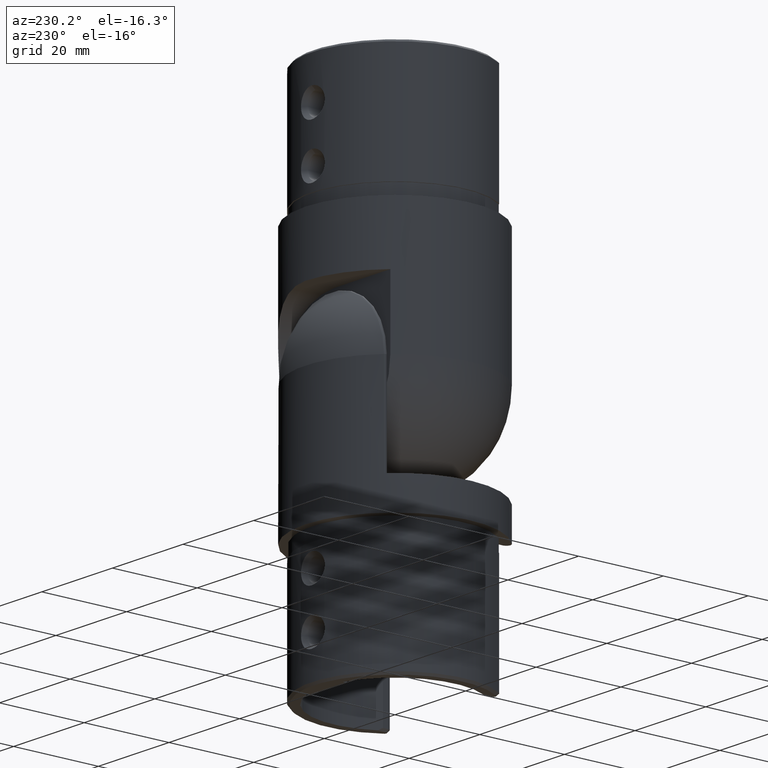
[diagram: clean part render]
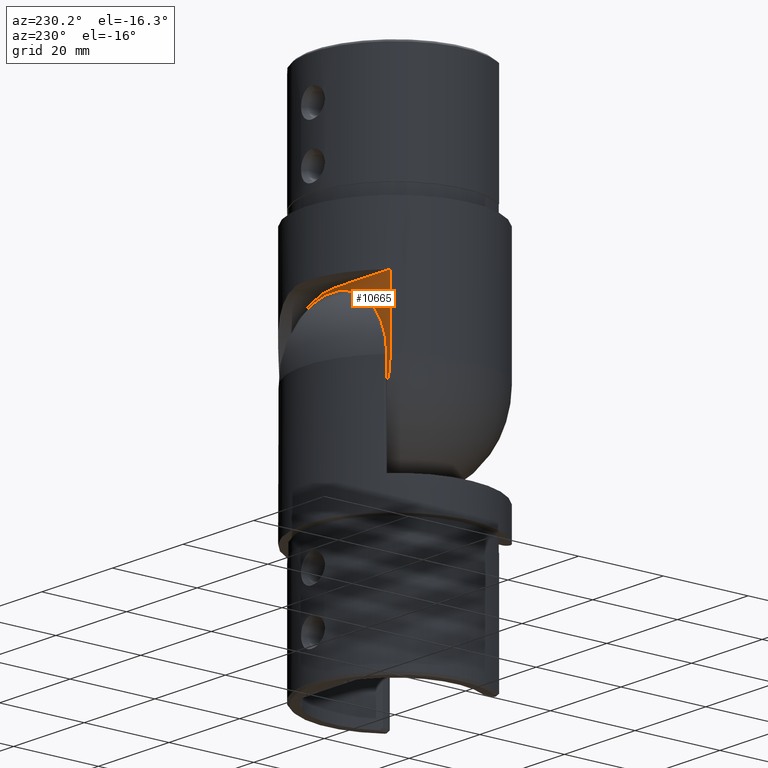
[diagram: same view with one face highlighted and labeled with its STEP entity id]
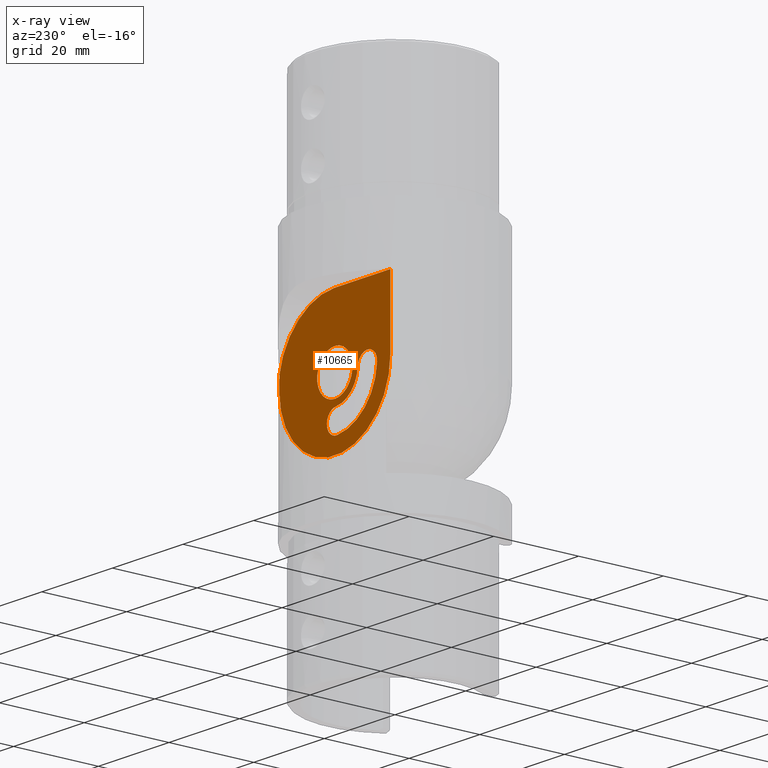
[diagram: x-ray of the same camera — body ghosted, the highlighted face saturated]
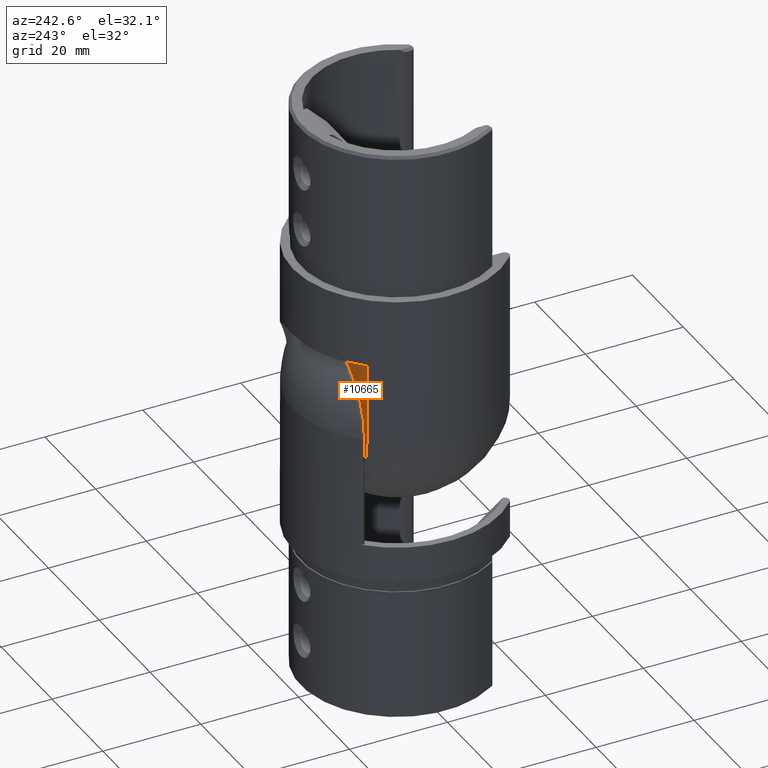
[diagram: same view with one face highlighted and labeled with its STEP entity id]
A machine part, auxiliary view. The second image highlights one B-rep face of the part: STEP entity #10665.
The next image is the same camera in x-ray: the body ghosted, the highlighted face saturated — about 0% of this face is hidden behind the body in this view.
A second angle (auxiliary view) of the same face is appended — the face is thin or edge-on in the first view.
In plain terms, the highlighted planar face has unit normal (0, 1, 0).
Its self-contained STEP definition (entity closure, byte-faithful):
#600 = DIRECTION ( 'NONE',  ( 1.000000000000000000, 0.0000000000000000000, 0.0000000000000000000 ) ) ;
#704 = VECTOR ( 'NONE', #12915, 1000.000000000000000 ) ;
#729 = EDGE_CURVE ( 'NONE', #8797, #14318, #22289, .T. ) ;
#1122 = DIRECTION ( 'NONE',  ( 0.0000000000000000000, 0.0000000000000000000, 1.000000000000000000 ) ) ;
#1349 = CIRCLE ( 'NONE', #1797, 6.500000000000002700 ) ;
#1753 = AXIS2_PLACEMENT_3D ( 'NONE', #14010, #15856, #23594 ) ;
#1797 = AXIS2_PLACEMENT_3D ( 'NONE', #23430, #2847, #1122 ) ;
#1901 = ORIENTED_EDGE ( 'NONE', *, *, #19060, .T. ) ;
#1964 = EDGE_CURVE ( 'NONE', #12697, #11263, #5080, .T. ) ;
#2166 = CARTESIAN_POINT ( 'NONE',  ( -11.98268790373803900, 14.20000000000000100, -30.64435285489399900 ) ) ;
#2571 = DIRECTION ( 'NONE',  ( -0.0000000000000000000, -1.000000000000000000, -0.0000000000000000000 ) ) ;
#2613 = EDGE_CURVE ( 'NONE', #11733, #15005, #9717, .T. ) ;
#2845 = DIRECTION ( 'NONE',  ( -0.0000000000000000000, -1.000000000000000000, -0.0000000000000000000 ) ) ;
#2847 = DIRECTION ( 'NONE',  ( 0.0000000000000000000, 1.000000000000000000, 0.0000000000000000000 ) ) ;
#2946 = CIRCLE ( 'NONE', #13919, 16.00000000000000000 ) ;
#3463 = LINE ( 'NONE', #19044, #11047 ) ;
#3526 = CARTESIAN_POINT ( 'NONE',  ( -15.74166446091390600, 14.20000000000000100, -30.00000000000000000 ) ) ;
#4470 = ORIENTED_EDGE ( 'NONE', *, *, #15861, .T. ) ;
#4886 = DIRECTION ( 'NONE',  ( -0.0000000000000000000, -1.000000000000000000, -0.0000000000000000000 ) ) ;
#5074 = CARTESIAN_POINT ( 'NONE',  ( 0.0000000000000000000, 14.20000000000000100, -30.00000000000000000 ) ) ;
#5080 = LINE ( 'NONE', #22197, #704 ) ;
#5240 = AXIS2_PLACEMENT_3D ( 'NONE', #5074, #6939, #8901 ) ;
#5564 = CARTESIAN_POINT ( 'NONE',  ( 0.0000000000000000000, 14.20000000000000100, -13.99999999999999800 ) ) ;
#6107 = AXIS2_PLACEMENT_3D ( 'NONE', #17869, #4886, #16170 ) ;
#6228 = EDGE_CURVE ( 'NONE', #14318, #19383, #1349, .T. ) ;
#6818 = CIRCLE ( 'NONE', #15488, 2.749999999999999100 ) ;
#6939 = DIRECTION ( 'NONE',  ( 0.0000000000000000000, 1.000000000000000000, 0.0000000000000000000 ) ) ;
#7280 = CIRCLE ( 'NONE', #1753, 12.00000000000000400 ) ;
#7671 = FACE_BOUND ( 'NONE', #22467, .T. ) ;
#7815 = CARTESIAN_POINT ( 'NONE',  ( 15.74166446091390300, 14.20000000000000100, -30.00000000000000000 ) ) ;
#8129 = CARTESIAN_POINT ( 'NONE',  ( -9.236655259131403300, 14.20000000000000100, -30.49668865898079400 ) ) ;
#8145 = ORIENTED_EDGE ( 'NONE', *, *, #21438, .T. ) ;
#8304 = DIRECTION ( 'NONE',  ( 1.774149009521732800E-015, 0.0000000000000000000, 1.000000000000000000 ) ) ;
#8796 = EDGE_CURVE ( 'NONE', #19383, #15045, #6818, .T. ) ;
#8797 = VERTEX_POINT ( 'NONE', #21031 ) ;
#8901 = DIRECTION ( 'NONE',  ( 0.0000000000000000000, -0.0000000000000000000, 1.000000000000000000 ) ) ;
#8905 = DIRECTION ( 'NONE',  ( 0.0000000000000000000, 0.0000000000000000000, 1.000000000000000000 ) ) ;
#8985 = CARTESIAN_POINT ( 'NONE',  ( 0.0000000000000000000, 14.20000000000000100, -30.00000000000000000 ) ) ;
#9201 = DIRECTION ( 'NONE',  ( 0.0000000000000000000, 0.0000000000000000000, 1.000000000000000000 ) ) ;
#9428 = VECTOR ( 'NONE', #20110, 1000.000000000000000 ) ;
#9480 = ORIENTED_EDGE ( 'NONE', *, *, #16928, .T. ) ;
#9568 = CARTESIAN_POINT ( 'NONE',  ( -15.74166446091391000, 14.20000000000000100, -30.00000000000000000 ) ) ;
#9585 = CIRCLE ( 'NONE', #11713, 15.74166446091390600 ) ;
#9717 = LINE ( 'NONE', #3526, #9428 ) ;
#10665 = ADVANCED_FACE ( 'NONE', ( #7671, #21932, #16950 ), #22075, .T. ) ;
#10920 = DIRECTION ( 'NONE',  ( 0.0000000000000000000, 1.000000000000000000, 0.0000000000000000000 ) ) ;
#11047 = VECTOR ( 'NONE', #600, 1000.000000000000000 ) ;
#11263 = VERTEX_POINT ( 'NONE', #19847 ) ;
#11713 = AXIS2_PLACEMENT_3D ( 'NONE', #22055, #10920, #9201 ) ;
#11733 = VERTEX_POINT ( 'NONE', #15998 ) ;
#12130 = VERTEX_POINT ( 'NONE', #18836 ) ;
#12213 = VERTEX_POINT ( 'NONE', #5564 ) ;
#12697 = VERTEX_POINT ( 'NONE', #7815 ) ;
#12915 = DIRECTION ( 'NONE',  ( 0.0000000000000000000, 0.0000000000000000000, 1.000000000000000000 ) ) ;
#13163 = EDGE_LOOP ( 'NONE', ( #8145, #1901, #20196, #9480, #20286 ) ) ;
#13919 = AXIS2_PLACEMENT_3D ( 'NONE', #8985, #20034, #8905 ) ;
#14010 = CARTESIAN_POINT ( 'NONE',  ( 1.734723475976807100E-015, 14.20000000000000100, -30.00000000000000000 ) ) ;
#14318 = VERTEX_POINT ( 'NONE', #23600 ) ;
#15005 = VERTEX_POINT ( 'NONE', #9568 ) ;
#15045 = VERTEX_POINT ( 'NONE', #2166 ) ;
#15488 = AXIS2_PLACEMENT_3D ( 'NONE', #8129, #2571, #21121 ) ;
#15856 = DIRECTION ( 'NONE',  ( -0.0000000000000000000, -1.000000000000000000, -0.0000000000000000000 ) ) ;
#15861 = EDGE_CURVE ( 'NONE', #15045, #8797, #7280, .T. ) ;
#15998 = CARTESIAN_POINT ( 'NONE',  ( -15.74166446091390600, 14.20000000000000100, -13.99999999999999800 ) ) ;
#16170 = DIRECTION ( 'NONE',  ( 0.0000000000000000000, 0.0000000000000000000, 1.000000000000000000 ) ) ;
#16563 = ORIENTED_EDGE ( 'NONE', *, *, #6228, .T. ) ;
#16928 = EDGE_CURVE ( 'NONE', #12697, #15005, #9585, .T. ) ;
#16950 = FACE_OUTER_BOUND ( 'NONE', #13163, .T. ) ;
#17604 = ORIENTED_EDGE ( 'NONE', *, *, #23967, .T. ) ;
#17869 = CARTESIAN_POINT ( 'NONE',  ( -5.806758582743424700E-015, 14.20000000000000100, -30.00000000000000000 ) ) ;
#18836 = CARTESIAN_POINT ( 'NONE',  ( -5.806758582743424700E-015, 14.20000000000000100, -24.99999999999998200 ) ) ;
#19044 = CARTESIAN_POINT ( 'NONE',  ( -16.00000000000000000, 14.20000000000000100, -13.99999999999999800 ) ) ;
#19060 = EDGE_CURVE ( 'NONE', #12213, #11263, #2946, .T. ) ;
#19383 = VERTEX_POINT ( 'NONE', #23115 ) ;
#19847 = CARTESIAN_POINT ( 'NONE',  ( 15.74166446091390600, 14.20000000000000100, -27.13643578734470900 ) ) ;
#20034 = DIRECTION ( 'NONE',  ( 0.0000000000000000000, 1.000000000000000000, 0.0000000000000000000 ) ) ;
#20110 = DIRECTION ( 'NONE',  ( -0.0000000000000000000, -0.0000000000000000000, -1.000000000000000000 ) ) ;
#20196 = ORIENTED_EDGE ( 'NONE', *, *, #1964, .F. ) ;
#20286 = ORIENTED_EDGE ( 'NONE', *, *, #2613, .F. ) ;
#20289 = ORIENTED_EDGE ( 'NONE', *, *, #729, .T. ) ;
#21031 = CARTESIAN_POINT ( 'NONE',  ( -0.6443528548940016300, 14.20000000000000100, -41.98268790373803900 ) ) ;
#21121 = DIRECTION ( 'NONE',  ( 0.0000000000000000000, 0.0000000000000000000, 1.000000000000000000 ) ) ;
#21150 = CARTESIAN_POINT ( 'NONE',  ( -0.4966886589807958400, 14.20000000000000100, -39.23665525913140300 ) ) ;
#21183 = AXIS2_PLACEMENT_3D ( 'NONE', #21150, #2845, #8304 ) ;
#21438 = EDGE_CURVE ( 'NONE', #11733, #12213, #3463, .T. ) ;
#21932 = FACE_BOUND ( 'NONE', #23659, .T. ) ;
#22055 = CARTESIAN_POINT ( 'NONE',  ( -5.806758582743424700E-015, 14.20000000000000100, -30.00000000000000000 ) ) ;
#22075 = PLANE ( 'NONE',  #5240 ) ;
#22197 = CARTESIAN_POINT ( 'NONE',  ( 15.74166446091390600, 14.20000000000000100, -30.00000000000000000 ) ) ;
#22289 = CIRCLE ( 'NONE', #21183, 2.750000000000002700 ) ;
#22467 = EDGE_LOOP ( 'NONE', ( #17604 ) ) ;
#22625 = CIRCLE ( 'NONE', #6107, 5.000000000000018700 ) ;
#23115 = CARTESIAN_POINT ( 'NONE',  ( -6.490622614524770700, 14.20000000000000100, -30.34902446306758600 ) ) ;
#23430 = CARTESIAN_POINT ( 'NONE',  ( 1.734723475976807100E-015, 14.20000000000000100, -30.00000000000000000 ) ) ;
#23524 = ORIENTED_EDGE ( 'NONE', *, *, #8796, .T. ) ;
#23594 = DIRECTION ( 'NONE',  ( 0.0000000000000000000, 0.0000000000000000000, 1.000000000000000000 ) ) ;
#23600 = CARTESIAN_POINT ( 'NONE',  ( -0.3490244630675836700, 14.20000000000000100, -36.49062261452477400 ) ) ;
#23659 = EDGE_LOOP ( 'NONE', ( #20289, #16563, #23524, #4470 ) ) ;
#23967 = EDGE_CURVE ( 'NONE', #12130, #12130, #22625, .T. ) ;